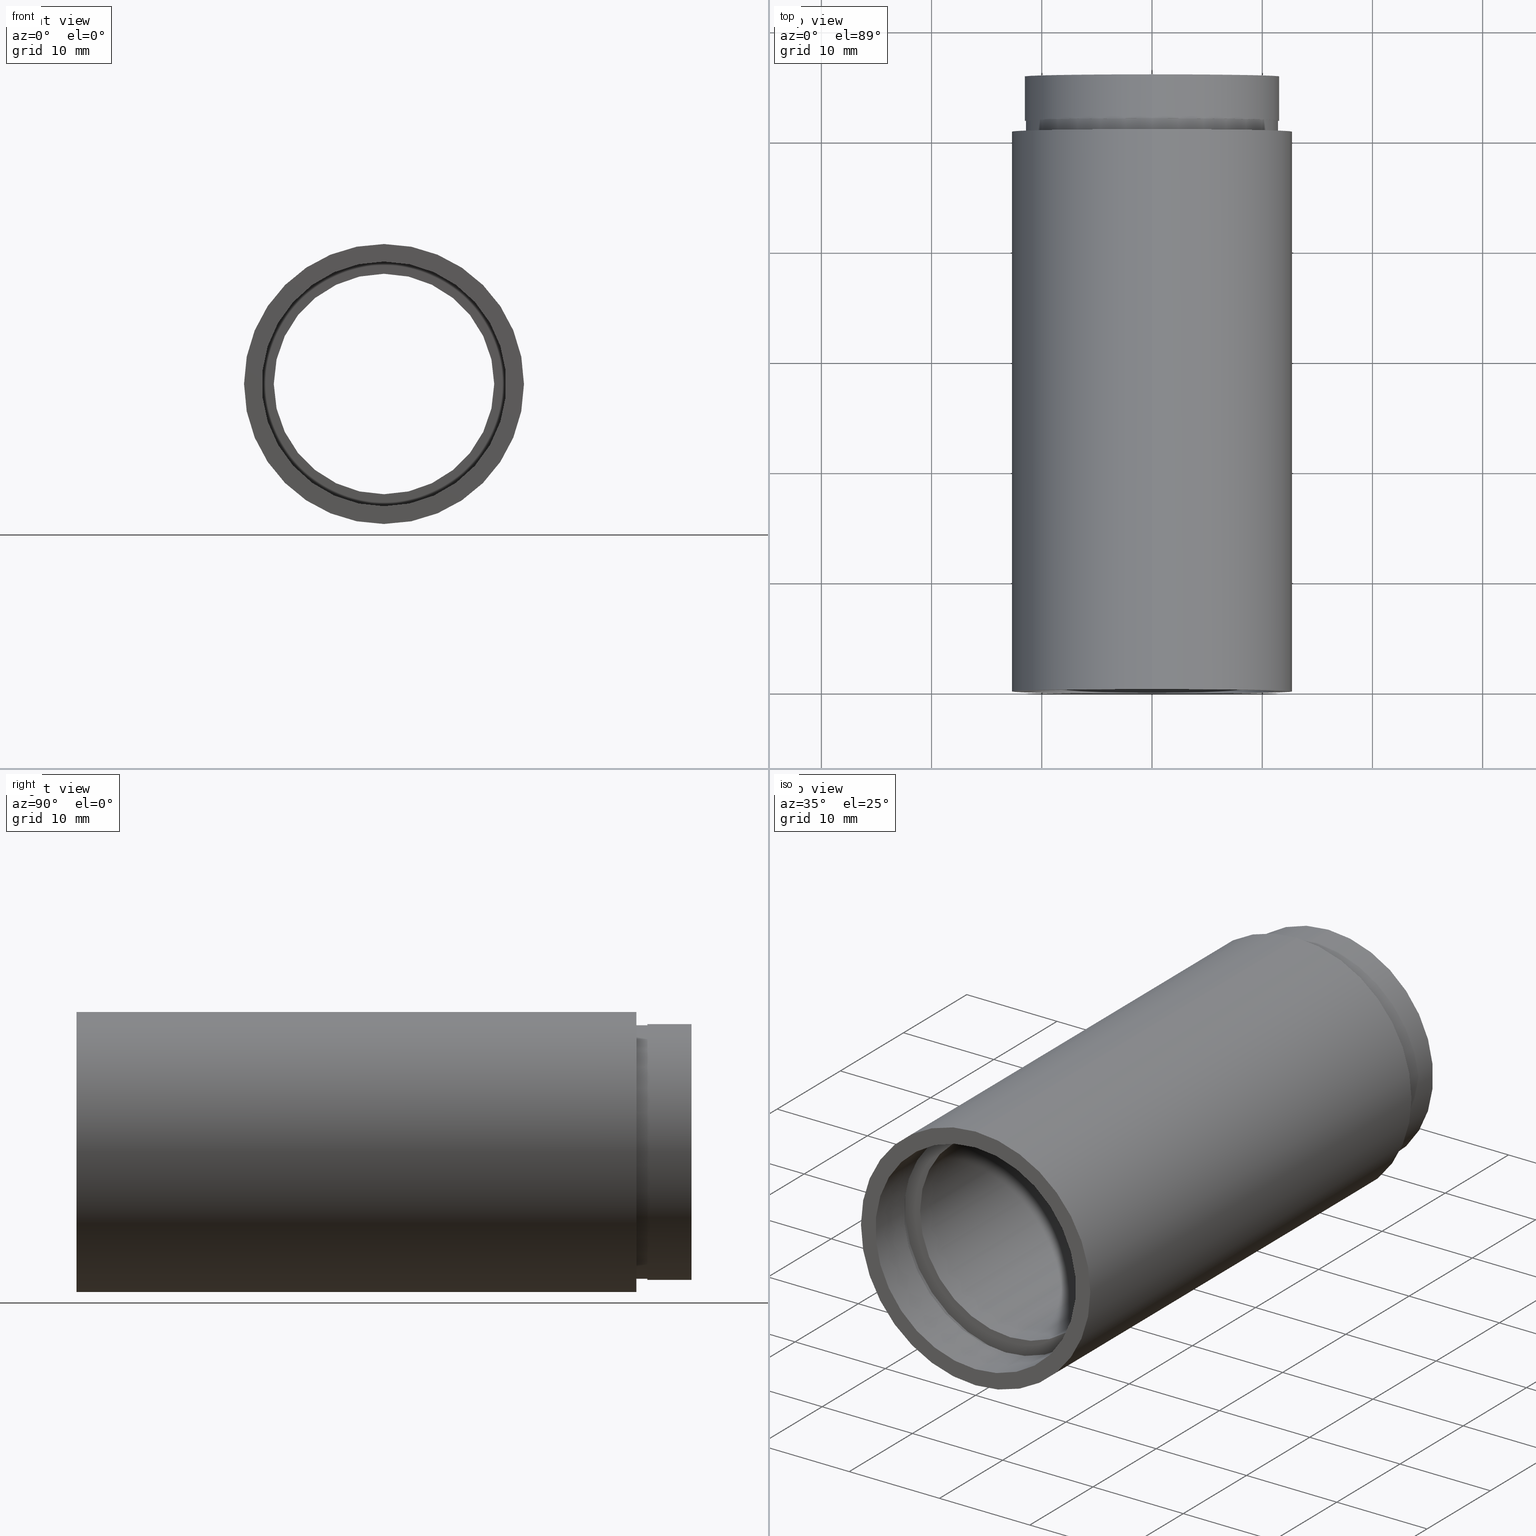
[diagram: canonical four-view strip — front | top / right | iso, engineering-drawing reading convention]
A machine part, canonical four-view strip (front | top / right | iso — engineering-drawing reading convention). The complete STEP part file that produces these views, byte-faithful:
ISO-10303-21;
HEADER;
FILE_DESCRIPTION (( 'STEP AP214' ),
    '1' );
FILE_NAME ('503056.STEP',
    '2019-09-09T01:47:25',
    ( '' ),
    ( '' ),
    'SwSTEP 2.0',
    'SolidWorks 2016',
    '' );
FILE_SCHEMA (( 'AUTOMOTIVE_DESIGN' ));
ENDSEC;

DATA;
#1 = AXIS2_PLACEMENT_3D ( 'NONE', #265, #24, #215 ) ;
#2 = ADVANCED_FACE ( 'NONE', ( #492 ), #305, .T. ) ;
#3 = AXIS2_PLACEMENT_3D ( 'NONE', #70, #458, #172 ) ;
#4 = ORIENTED_EDGE ( 'NONE', *, *, #54, .F. ) ;
#5 =( LENGTH_UNIT ( ) NAMED_UNIT ( * ) SI_UNIT ( .MILLI., .METRE. ) );
#6 = CYLINDRICAL_SURFACE ( 'NONE', #13, 11.50000000000001200 ) ;
#7 = ORIENTED_EDGE ( 'NONE', *, *, #381, .T. ) ;
#8 = DIRECTION ( 'NONE',  ( -0.0000000000000000000, 1.000000000000000000, -0.0000000000000000000 ) ) ;
#9 = CIRCLE ( 'NONE', #342, 11.50000000000001200 ) ;
#10 = EDGE_CURVE ( 'NONE', #387, #130, #144, .T. ) ;
#11 = PRESENTATION_STYLE_ASSIGNMENT (( #170 ) ) ;
#12 = APPLICATION_PROTOCOL_DEFINITION ( 'draft international standard', 'automotive_design', 1998, #438 ) ;
#13 = AXIS2_PLACEMENT_3D ( 'NONE', #87, #282, #422 ) ;
#14 = CARTESIAN_POINT ( 'NONE',  ( 0.0000000000000000000, 161.3761669434274500, 11.70000000000001900 ) ) ;
#15 = DIRECTION ( 'NONE',  ( -0.0000000000000000000, 1.000000000000000000, -0.0000000000000000000 ) ) ;
#16 = DIRECTION ( 'NONE',  ( -0.0000000000000000000, 1.000000000000000000, -0.0000000000000000000 ) ) ;
#17 = VERTEX_POINT ( 'NONE', #549 ) ;
#18 = DIRECTION ( 'NONE',  ( -0.0000000000000000000, 1.000000000000000000, -0.0000000000000000000 ) ) ;
#19 = ORIENTED_EDGE ( 'NONE', *, *, #384, .F. ) ;
#20 = PRESENTATION_STYLE_ASSIGNMENT (( #420 ) ) ;
#21 = CARTESIAN_POINT ( 'NONE',  ( 0.0000000000000000000, 51.79999999999998300, 0.0000000000000000000 ) ) ;
#22 = ORIENTED_EDGE ( 'NONE', *, *, #620, .T. ) ;
#23 = DIRECTION ( 'NONE',  ( -0.0000000000000000000, 1.000000000000000000, -0.0000000000000000000 ) ) ;
#24 = DIRECTION ( 'NONE',  ( -0.0000000000000000000, 1.000000000000000000, -0.0000000000000000000 ) ) ;
#25 = MECHANICAL_DESIGN_GEOMETRIC_PRESENTATION_REPRESENTATION (  '', ( #453 ), #572 ) ;
#26 = EDGE_CURVE ( 'NONE', #141, #299, #9, .T. ) ;
#27 =( LENGTH_UNIT ( ) NAMED_UNIT ( * ) SI_UNIT ( .MILLI., .METRE. ) );
#28 = DIRECTION ( 'NONE',  ( -0.0000000000000000000, 1.000000000000000000, -0.0000000000000000000 ) ) ;
#29 = AXIS2_PLACEMENT_3D ( 'NONE', #324, #32, #179 ) ;
#30 = CARTESIAN_POINT ( 'NONE',  ( 0.0000000000000000000, 4.499999999999976000, 0.0000000000000000000 ) ) ;
#31 = CARTESIAN_POINT ( 'NONE',  ( 1.408343819019457800E-015, 50.79999999999998300, -11.50000000000001200 ) ) ;
#32 = DIRECTION ( 'NONE',  ( -0.0000000000000000000, 1.000000000000000000, -0.0000000000000000000 ) ) ;
#33 = DIRECTION ( 'NONE',  ( -0.0000000000000000000, 1.000000000000000000, -0.0000000000000000000 ) ) ;
#34 = CARTESIAN_POINT ( 'NONE',  ( 0.0000000000000000000, 5.499999999999976900, 0.0000000000000000000 ) ) ;
#35 = DIRECTION ( 'NONE',  ( -0.0000000000000000000, 1.000000000000000000, -0.0000000000000000000 ) ) ;
#36 = DIRECTION ( 'NONE',  ( -0.0000000000000000000, 1.000000000000000000, -0.0000000000000000000 ) ) ;
#37 = CARTESIAN_POINT ( 'NONE',  ( 1.420590287010930900E-015, 55.79999999999999000, -11.60000000000001000 ) ) ;
#38 = DIRECTION ( 'NONE',  ( -0.0000000000000000000, 1.000000000000000000, -0.0000000000000000000 ) ) ;
#39 = PLANE ( 'NONE',  #321 ) ;
#40 = ORIENTED_EDGE ( 'NONE', *, *, #110, .T. ) ;
#41 = PRODUCT_DEFINITION_CONTEXT ( 'detailed design', #438, 'design' ) ;
#42 = CIRCLE ( 'NONE', #588, 11.70000000000001900 ) ;
#43 = ORIENTED_EDGE ( 'NONE', *, *, #441, .F. ) ;
#44 = STYLED_ITEM ( 'NONE', ( #11 ), #484 ) ;
#45 = EDGE_CURVE ( 'NONE', #522, #122, #320, .T. ) ;
#46 = UNCERTAINTY_MEASURE_WITH_UNIT (LENGTH_MEASURE( 1.000000000000000100E-005 ), #201, 'distance_accuracy_value', 'NONE');
#47 = AXIS2_PLACEMENT_3D ( 'NONE', #177, #28, #545 ) ;
#48 = STYLED_ITEM ( 'NONE', ( #20 ), #297 ) ;
#49 = ADVANCED_FACE ( 'NONE', ( #168 ), #347, .F. ) ;
#50 = ADVANCED_FACE ( 'NONE', ( #94 ), #488, .T. ) ;
#51 = VERTEX_POINT ( 'NONE', #121 ) ;
#52 = FACE_OUTER_BOUND ( 'NONE', #231, .T. ) ;
#53 = AXIS2_PLACEMENT_3D ( 'NONE', #609, #417, #462 ) ;
#54 = EDGE_CURVE ( 'NONE', #238, #351, #503, .T. ) ;
#55 = SURFACE_STYLE_FILL_AREA ( #553 ) ;
#56 = FACE_BOUND ( 'NONE', #613, .T. ) ;
#57 = DIRECTION ( 'NONE',  ( -0.0000000000000000000, 1.000000000000000000, -0.0000000000000000000 ) ) ;
#58 = STYLED_ITEM ( 'NONE', ( #200 ), #337 ) ;
#59 = ORIENTED_EDGE ( 'NONE', *, *, #384, .T. ) ;
#60 = FILL_AREA_STYLE_COLOUR ( '', #292 ) ;
#61 = CARTESIAN_POINT ( 'NONE',  ( 11.70000000000001900, 5.499999999999982200, 0.0000000000000000000 ) ) ;
#62 = CIRCLE ( 'NONE', #263, 11.50000000000001200 ) ;
#63 = AXIS2_PLACEMENT_3D ( 'NONE', #61, #359, #118 ) ;
#64 = ORIENTED_EDGE ( 'NONE', *, *, #45, .T. ) ;
#65 = ORIENTED_EDGE ( 'NONE', *, *, #505, .T. ) ;
#66 = COLOUR_RGB ( '',1.000000000000000000, 1.000000000000000000, 1.000000000000000000 ) ;
#67 = PLANE ( 'NONE',  #560 ) ;
#68 = DIRECTION ( 'NONE',  ( 0.0000000000000000000, 0.0000000000000000000, 1.000000000000000000 ) ) ;
#69 = AXIS2_PLACEMENT_3D ( 'NONE', #117, #15, #597 ) ;
#70 = CARTESIAN_POINT ( 'NONE',  ( 0.0000000000000000000, 161.3761669434274500, 0.0000000000000000000 ) ) ;
#71 = DIRECTION ( 'NONE',  ( -0.0000000000000000000, 1.000000000000000000, -0.0000000000000000000 ) ) ;
#72 = CARTESIAN_POINT ( 'NONE',  ( 0.0000000000000000000, 5.499999999999976900, 0.0000000000000000000 ) ) ;
#73 = DIRECTION ( 'NONE',  ( 0.0000000000000000000, 0.0000000000000000000, 1.000000000000000000 ) ) ;
#74 = ORIENTED_EDGE ( 'NONE', *, *, #570, .F. ) ;
#75 = EDGE_CURVE ( 'NONE', #555, #264, #142, .T. ) ;
#76 = DIRECTION ( 'NONE',  ( -0.0000000000000000000, 1.000000000000000000, -0.0000000000000000000 ) ) ;
#77 = VECTOR ( 'NONE', #286, 1000.000000000000000 ) ;
#78 = FILL_AREA_STYLE_COLOUR ( '', #302 ) ;
#79 = CARTESIAN_POINT ( 'NONE',  ( 1.432836755002405700E-015, 5.499999999999976900, -11.70000000000001900 ) ) ;
#80 = SURFACE_SIDE_STYLE ('',( #502 ) ) ;
#81 = ORIENTED_EDGE ( 'NONE', *, *, #110, .F. ) ;
#82 = PRESENTATION_LAYER_ASSIGNMENT (  '', '', ( #48 ) ) ;
#83 = CARTESIAN_POINT ( 'NONE',  ( 1.420590287010930900E-015, 161.3761669434274500, -11.60000000000001000 ) ) ;
#84 = CIRCLE ( 'NONE', #1, 11.10000000000001700 ) ;
#85 = ORIENTED_EDGE ( 'NONE', *, *, #291, .T. ) ;
#86 = DIRECTION ( 'NONE',  ( 0.0000000000000000000, 0.0000000000000000000, 1.000000000000000000 ) ) ;
#87 = CARTESIAN_POINT ( 'NONE',  ( 0.0000000000000000000, 161.3761669434274500, 0.0000000000000000000 ) ) ;
#88 = ORIENTED_EDGE ( 'NONE', *, *, #548, .T. ) ;
#89 = COLOUR_RGB ( '',1.000000000000000000, 1.000000000000000000, 1.000000000000000000 ) ;
#90 = DIRECTION ( 'NONE',  ( 0.0000000000000000000, 0.0000000000000000000, 1.000000000000000000 ) ) ;
#91 = LINE ( 'NONE', #455, #454 ) ;
#92 = EDGE_CURVE ( 'NONE', #555, #311, #243, .T. ) ;
#93 = PRODUCT ( '503056', '503056', '', ( #210 ) ) ;
#94 = FACE_OUTER_BOUND ( 'NONE', #151, .T. ) ;
#95 = MECHANICAL_DESIGN_GEOMETRIC_PRESENTATION_REPRESENTATION (  '', ( #48 ), #459 ) ;
#96 = PRESENTATION_STYLE_ASSIGNMENT (( #383 ) ) ;
#97 = DIRECTION ( 'NONE',  ( 0.0000000000000000000, 0.0000000000000000000, 1.000000000000000000 ) ) ;
#98 = CIRCLE ( 'NONE', #437, 10.00000000000002000 ) ;
#99 = ORIENTED_EDGE ( 'NONE', *, *, #291, .F. ) ;
#100 = AXIS2_PLACEMENT_3D ( 'NONE', #161, #301, #252 ) ;
#101 = VERTEX_POINT ( 'NONE', #322 ) ;
#102 = ADVANCED_FACE ( 'NONE', ( #606, #379 ), #421, .F. ) ;
#103 =( LENGTH_UNIT ( ) NAMED_UNIT ( * ) SI_UNIT ( .MILLI., .METRE. ) );
#104 = VECTOR ( 'NONE', #445, 1000.000000000000000 ) ;
#105 = MECHANICAL_DESIGN_GEOMETRIC_PRESENTATION_REPRESENTATION (  '', ( #44 ), #300 ) ;
#106 = SURFACE_STYLE_USAGE ( .BOTH. , #439 ) ;
#107 = EDGE_LOOP ( 'NONE', ( #574, #7, #229, #596 ) ) ;
#108 = LINE ( 'NONE', #223, #478 ) ;
#109 = APPLICATION_PROTOCOL_DEFINITION ( 'draft international standard', 'automotive_design', 1998, #349 ) ;
#110 = EDGE_CURVE ( 'NONE', #264, #51, #336, .T. ) ;
#111 = ORIENTED_EDGE ( 'NONE', *, *, #10, .F. ) ;
#112 = UNCERTAINTY_MEASURE_WITH_UNIT (LENGTH_MEASURE( 1.000000000000000100E-005 ), #137, 'distance_accuracy_value', 'NONE');
#113 = LINE ( 'NONE', #546, #624 ) ;
#114 = ORIENTED_EDGE ( 'NONE', *, *, #178, .F. ) ;
#115 =( NAMED_UNIT ( * ) SI_UNIT ( $, .STERADIAN. ) SOLID_ANGLE_UNIT ( ) );
#116 =( GEOMETRIC_REPRESENTATION_CONTEXT ( 3 ) GLOBAL_UNCERTAINTY_ASSIGNED_CONTEXT ( ( #112 ) ) GLOBAL_UNIT_ASSIGNED_CONTEXT ( ( #137, #128, #428 ) ) REPRESENTATION_CONTEXT ( 'NONE', 'WORKASPACE' ) );
#117 = CARTESIAN_POINT ( 'NONE',  ( 0.0000000000000000000, 161.3761669434274500, 0.0000000000000000000 ) ) ;
#118 = DIRECTION ( 'NONE',  ( 0.0000000000000000000, 0.0000000000000000000, 1.000000000000000000 ) ) ;
#119 = LINE ( 'NONE', #392, #104 ) ;
#120 = CARTESIAN_POINT ( 'NONE',  ( 1.432836755002405700E-015, 4.499999999999976000, -11.70000000000001900 ) ) ;
#121 = CARTESIAN_POINT ( 'NONE',  ( 0.0000000000000000000, 55.79999999999999000, 11.60000000000001000 ) ) ;
#122 = VERTEX_POINT ( 'NONE', #174 ) ;
#123 =( NAMED_UNIT ( * ) PLANE_ANGLE_UNIT ( ) SI_UNIT ( $, .RADIAN. ) );
#124 = LINE ( 'NONE', #425, #267 ) ;
#125 = DIRECTION ( 'NONE',  ( 0.0000000000000000000, 0.0000000000000000000, 1.000000000000000000 ) ) ;
#126 = EDGE_CURVE ( 'NONE', #238, #365, #108, .T. ) ;
#127 = DIRECTION ( 'NONE',  ( 0.0000000000000000000, 0.0000000000000000000, 1.000000000000000000 ) ) ;
#128 =( NAMED_UNIT ( * ) PLANE_ANGLE_UNIT ( ) SI_UNIT ( $, .RADIAN. ) );
#129 =( GEOMETRIC_REPRESENTATION_CONTEXT ( 3 ) GLOBAL_UNCERTAINTY_ASSIGNED_CONTEXT ( ( #513 ) ) GLOBAL_UNIT_ASSIGNED_CONTEXT ( ( #374, #227, #514 ) ) REPRESENTATION_CONTEXT ( 'NONE', 'WORKASPACE' ) );
#130 = VERTEX_POINT ( 'NONE', #460 ) ;
#131 = DIRECTION ( 'NONE',  ( 0.0000000000000000000, 0.0000000000000000000, 1.000000000000000000 ) ) ;
#132 = CARTESIAN_POINT ( 'NONE',  ( 0.0000000000000000000, 51.79999999999998300, 11.50000000000001200 ) ) ;
#133 = CIRCLE ( 'NONE', #494, 11.10000000000001700 ) ;
#134 = CIRCLE ( 'NONE', #306, 11.70000000000001900 ) ;
#135 = FILL_AREA_STYLE_COLOUR ( '', #521 ) ;
#136 = CARTESIAN_POINT ( 'NONE',  ( 0.0000000000000000000, -2.775557561562891400E-014, 0.0000000000000000000 ) ) ;
#137 =( LENGTH_UNIT ( ) NAMED_UNIT ( * ) SI_UNIT ( .MILLI., .METRE. ) );
#138 = CARTESIAN_POINT ( 'NONE',  ( 11.60000000000001000, 55.79999999999999000, 0.0000000000000000000 ) ) ;
#139 = DIRECTION ( 'NONE',  ( -0.0000000000000000000, 1.000000000000000000, -0.0000000000000000000 ) ) ;
#140 = CARTESIAN_POINT ( 'NONE',  ( 0.0000000000000000000, 55.79999999999999000, 0.0000000000000000000 ) ) ;
#141 = VERTEX_POINT ( 'NONE', #611 ) ;
#142 = LINE ( 'NONE', #83, #407 ) ;
#143 = EDGE_LOOP ( 'NONE', ( #590, #470 ) ) ;
#144 = CIRCLE ( 'NONE', #481, 12.70000000000002100 ) ;
#145 = EDGE_CURVE ( 'NONE', #603, #317, #444, .T. ) ;
#146 = CYLINDRICAL_SURFACE ( 'NONE', #196, 11.10000000000001700 ) ;
#147 = CARTESIAN_POINT ( 'NONE',  ( 0.0000000000000000000, 161.3761669434274500, 0.0000000000000000000 ) ) ;
#148 = PRESENTATION_LAYER_ASSIGNMENT (  '', '', ( #58 ) ) ;
#149 = DIRECTION ( 'NONE',  ( -0.0000000000000000000, 1.000000000000000000, -0.0000000000000000000 ) ) ;
#150 = ADVANCED_FACE ( 'NONE', ( #268 ), #532, .T. ) ;
#151 = EDGE_LOOP ( 'NONE', ( #357, #529, #186, #266 ) ) ;
#152 = ORIENTED_EDGE ( 'NONE', *, *, #477, .T. ) ;
#153 = CIRCLE ( 'NONE', #599, 11.60000000000001000 ) ;
#154 = VERTEX_POINT ( 'NONE', #327 ) ;
#155 = EDGE_CURVE ( 'NONE', #130, #387, #367, .T. ) ;
#156 = FACE_OUTER_BOUND ( 'NONE', #353, .T. ) ;
#157 = SURFACE_STYLE_FILL_AREA ( #354 ) ;
#158 = AXIS2_PLACEMENT_3D ( 'NONE', #601, #23, #273 ) ;
#159 = UNCERTAINTY_MEASURE_WITH_UNIT (LENGTH_MEASURE( 1.000000000000000100E-005 ), #165, 'distance_accuracy_value', 'NONE');
#160 = SURFACE_SIDE_STYLE ('',( #251 ) ) ;
#161 = CARTESIAN_POINT ( 'NONE',  ( 0.0000000000000000000, 5.499999999999976900, 0.0000000000000000000 ) ) ;
#162 = DIRECTION ( 'NONE',  ( -0.0000000000000000000, 1.000000000000000000, -0.0000000000000000000 ) ) ;
#163 = AXIS2_PLACEMENT_3D ( 'NONE', #593, #608, #371 ) ;
#164 =( NAMED_UNIT ( * ) PLANE_ANGLE_UNIT ( ) SI_UNIT ( $, .RADIAN. ) );
#165 =( LENGTH_UNIT ( ) NAMED_UNIT ( * ) SI_UNIT ( .MILLI., .METRE. ) );
#166 = EDGE_LOOP ( 'NONE', ( #85, #452, #487, #476 ) ) ;
#167 = VECTOR ( 'NONE', #187, 1000.000000000000000 ) ;
#168 = FACE_OUTER_BOUND ( 'NONE', #290, .T. ) ;
#169 = EDGE_LOOP ( 'NONE', ( #310, #464 ) ) ;
#170 = SURFACE_STYLE_USAGE ( .BOTH. , #309 ) ;
#171 = PRESENTATION_LAYER_ASSIGNMENT (  '', '', ( #44 ) ) ;
#172 = DIRECTION ( 'NONE',  ( 0.0000000000000000000, 0.0000000000000000000, 1.000000000000000000 ) ) ;
#173 = CARTESIAN_POINT ( 'NONE',  ( 12.70000000000001900, 50.79999999999998300, 0.0000000000000000000 ) ) ;
#174 = CARTESIAN_POINT ( 'NONE',  ( 1.555301434917140800E-015, 50.79999999999998300, -12.70000000000001900 ) ) ;
#175 = CIRCLE ( 'NONE', #163, 11.10000000000001700 ) ;
#176 = DIRECTION ( 'NONE',  ( -0.0000000000000000000, 1.000000000000000000, -0.0000000000000000000 ) ) ;
#177 = CARTESIAN_POINT ( 'NONE',  ( 0.0000000000000000000, 161.3761669434274500, 0.0000000000000000000 ) ) ;
#178 = EDGE_CURVE ( 'NONE', #154, #408, #42, .T. ) ;
#179 = DIRECTION ( 'NONE',  ( 0.0000000000000000000, 0.0000000000000000000, 1.000000000000000000 ) ) ;
#180 = FILL_AREA_STYLE ('',( #463 ) ) ;
#181 = DIRECTION ( 'NONE',  ( -0.0000000000000000000, 1.000000000000000000, -0.0000000000000000000 ) ) ;
#182 = FILL_AREA_STYLE ('',( #562 ) ) ;
#183 = CARTESIAN_POINT ( 'NONE',  ( 0.0000000000000000000, 161.3761669434274500, 0.0000000000000000000 ) ) ;
#184 = MECHANICAL_DESIGN_GEOMETRIC_PRESENTATION_REPRESENTATION (  '', ( #473 ), #567 ) ;
#185 = ORIENTED_EDGE ( 'NONE', *, *, #348, .F. ) ;
#186 = ORIENTED_EDGE ( 'NONE', *, *, #45, .F. ) ;
#187 = DIRECTION ( 'NONE',  ( -0.0000000000000000000, 1.000000000000000000, -0.0000000000000000000 ) ) ;
#188 = VECTOR ( 'NONE', #176, 1000.000000000000000 ) ;
#189 = EDGE_CURVE ( 'NONE', #338, #603, #207, .T. ) ;
#190 = CARTESIAN_POINT ( 'NONE',  ( 0.0000000000000000000, 161.3761669434274500, 0.0000000000000000000 ) ) ;
#191 = ORIENTED_EDGE ( 'NONE', *, *, #75, .F. ) ;
#192 = AXIS2_PLACEMENT_3D ( 'NONE', #190, #247, #97 ) ;
#193 = EDGE_LOOP ( 'NONE', ( #99, #496 ) ) ;
#194 = ORIENTED_EDGE ( 'NONE', *, *, #586, .F. ) ;
#195 = SURFACE_SIDE_STYLE ('',( #372 ) ) ;
#196 = AXIS2_PLACEMENT_3D ( 'NONE', #534, #8, #587 ) ;
#197 = ORIENTED_EDGE ( 'NONE', *, *, #315, .T. ) ;
#198 = ORIENTED_EDGE ( 'NONE', *, *, #126, .F. ) ;
#199 = ADVANCED_FACE ( 'NONE', ( #524, #272 ), #39, .F. ) ;
#200 = PRESENTATION_STYLE_ASSIGNMENT (( #323 ) ) ;
#201 =( LENGTH_UNIT ( ) NAMED_UNIT ( * ) SI_UNIT ( .MILLI., .METRE. ) );
#202 = AXIS2_PLACEMENT_3D ( 'NONE', #147, #341, #604 ) ;
#203 = CIRCLE ( 'NONE', #100, 10.00000000000002000 ) ;
#204 = DIRECTION ( 'NONE',  ( -0.0000000000000000000, 1.000000000000000000, -0.0000000000000000000 ) ) ;
#205 = EDGE_LOOP ( 'NONE', ( #380, #214 ) ) ;
#206 = CARTESIAN_POINT ( 'NONE',  ( 0.0000000000000000000, 0.0000000000000000000, 0.0000000000000000000 ) ) ;
#207 = LINE ( 'NONE', #517, #77 ) ;
#208 = EDGE_CURVE ( 'NONE', #387, #522, #124, .T. ) ;
#209 = ORIENTED_EDGE ( 'NONE', *, *, #348, .T. ) ;
#210 = PRODUCT_CONTEXT ( 'NONE', #349, 'mechanical' ) ;
#211 = FACE_OUTER_BOUND ( 'NONE', #107, .T. ) ;
#212 = ORIENTED_EDGE ( 'NONE', *, *, #145, .F. ) ;
#213 = AXIS2_PLACEMENT_3D ( 'NONE', #72, #412, #605 ) ;
#214 = ORIENTED_EDGE ( 'NONE', *, *, #26, .T. ) ;
#215 = DIRECTION ( 'NONE',  ( 0.0000000000000000000, 0.0000000000000000000, 1.000000000000000000 ) ) ;
#216 = DIRECTION ( 'NONE',  ( 0.0000000000000000000, -0.0000000000000000000, -1.000000000000000000 ) ) ;
#217 = DIRECTION ( 'NONE',  ( -0.0000000000000000000, 1.000000000000000000, -0.0000000000000000000 ) ) ;
#218 = LINE ( 'NONE', #368, #188 ) ;
#219 = DIRECTION ( 'NONE',  ( 0.0000000000000000000, 0.0000000000000000000, 1.000000000000000000 ) ) ;
#220 = CARTESIAN_POINT ( 'NONE',  ( 1.224646799147355400E-015, 55.79999999999999000, -10.00000000000002000 ) ) ;
#221 = DIRECTION ( 'NONE',  ( -0.0000000000000000000, 1.000000000000000000, -0.0000000000000000000 ) ) ;
#222 = EDGE_CURVE ( 'NONE', #365, #435, #531, .T. ) ;
#223 = CARTESIAN_POINT ( 'NONE',  ( 1.224646799147355400E-015, 161.3761669434274500, -10.00000000000002000 ) ) ;
#224 = DIRECTION ( 'NONE',  ( 0.0000000000000000000, 0.0000000000000000000, 1.000000000000000000 ) ) ;
#225 = CARTESIAN_POINT ( 'NONE',  ( 0.0000000000000000000, 51.79999999999998300, 0.0000000000000000000 ) ) ;
#226 = AXIS2_PLACEMENT_3D ( 'NONE', #313, #361, #308 ) ;
#227 =( NAMED_UNIT ( * ) PLANE_ANGLE_UNIT ( ) SI_UNIT ( $, .RADIAN. ) );
#228 = DIRECTION ( 'NONE',  ( -0.0000000000000000000, 1.000000000000000000, -0.0000000000000000000 ) ) ;
#229 = ORIENTED_EDGE ( 'NONE', *, *, #536, .T. ) ;
#230 = UNCERTAINTY_MEASURE_WITH_UNIT (LENGTH_MEASURE( 1.000000000000000100E-005 ), #525, 'distance_accuracy_value', 'NONE');
#231 = EDGE_LOOP ( 'NONE', ( #197, #235, #426, #285 ) ) ;
#232 = CARTESIAN_POINT ( 'NONE',  ( 0.0000000000000000000, 161.3761669434274500, 0.0000000000000000000 ) ) ;
#233 = DIRECTION ( 'NONE',  ( 0.0000000000000000000, 0.0000000000000000000, 1.000000000000000000 ) ) ;
#234 = DIRECTION ( 'NONE',  ( 0.0000000000000000000, 0.0000000000000000000, 1.000000000000000000 ) ) ;
#235 = ORIENTED_EDGE ( 'NONE', *, *, #621, .T. ) ;
#236 = AXIS2_PLACEMENT_3D ( 'NONE', #410, #18, #125 ) ;
#237 = DIRECTION ( 'NONE',  ( 0.0000000000000000000, 0.0000000000000000000, 1.000000000000000000 ) ) ;
#238 = VERTEX_POINT ( 'NONE', #239 ) ;
#239 = CARTESIAN_POINT ( 'NONE',  ( 1.224646799147355400E-015, 5.499999999999976900, -10.00000000000002000 ) ) ;
#240 = VECTOR ( 'NONE', #204, 1000.000000000000000 ) ;
#241 = MECHANICAL_DESIGN_GEOMETRIC_PRESENTATION_REPRESENTATION (  '', ( #58 ), #129 ) ;
#242 = ORIENTED_EDGE ( 'NONE', *, *, #189, .F. ) ;
#243 = CIRCLE ( 'NONE', #29, 11.60000000000001000 ) ;
#244 = EDGE_CURVE ( 'NONE', #130, #122, #471, .T. ) ;
#245 = FILL_AREA_STYLE ('',( #575 ) ) ;
#246 = SURFACE_STYLE_FILL_AREA ( #589 ) ;
#247 = DIRECTION ( 'NONE',  ( -0.0000000000000000000, 1.000000000000000000, -0.0000000000000000000 ) ) ;
#248 = AXIS2_PLACEMENT_3D ( 'NONE', #318, #217, #224 ) ;
#249 = ADVANCED_FACE ( 'NONE', ( #312, #520 ), #465, .F. ) ;
#250 = ORIENTED_EDGE ( 'NONE', *, *, #441, .T. ) ;
#251 = SURFACE_STYLE_FILL_AREA ( #442 ) ;
#252 = DIRECTION ( 'NONE',  ( 0.0000000000000000000, 0.0000000000000000000, 1.000000000000000000 ) ) ;
#253 = EDGE_LOOP ( 'NONE', ( #360, #504 ) ) ;
#254 = PRESENTATION_STYLE_ASSIGNMENT (( #404 ) ) ;
#255 =( NAMED_UNIT ( * ) PLANE_ANGLE_UNIT ( ) SI_UNIT ( $, .RADIAN. ) );
#256 = AXIS2_PLACEMENT_3D ( 'NONE', #206, #538, #261 ) ;
#257 = EDGE_CURVE ( 'NONE', #351, #435, #436, .T. ) ;
#258 = CARTESIAN_POINT ( 'NONE',  ( 1.359357947053564100E-015, 4.499999999999976000, -11.10000000000001700 ) ) ;
#259 = ORIENTED_EDGE ( 'NONE', *, *, #381, .F. ) ;
#260 = AXIS2_PLACEMENT_3D ( 'NONE', #183, #283, #233 ) ;
#261 = DIRECTION ( 'NONE',  ( 1.000000000000000000, 0.0000000000000000000, 0.0000000000000000000 ) ) ;
#262 = CARTESIAN_POINT ( 'NONE',  ( 0.0000000000000000000, 50.79999999999998300, 12.70000000000001900 ) ) ;
#263 = AXIS2_PLACEMENT_3D ( 'NONE', #225, #554, #275 ) ;
#264 = VERTEX_POINT ( 'NONE', #37 ) ;
#265 = CARTESIAN_POINT ( 'NONE',  ( 0.0000000000000000000, -2.775557561562891400E-014, 0.0000000000000000000 ) ) ;
#266 = ORIENTED_EDGE ( 'NONE', *, *, #208, .F. ) ;
#267 = VECTOR ( 'NONE', #288, 1000.000000000000000 ) ;
#268 = FACE_OUTER_BOUND ( 'NONE', #434, .T. ) ;
#269 = ORIENTED_EDGE ( 'NONE', *, *, #208, .T. ) ;
#270 = MECHANICAL_DESIGN_GEOMETRIC_PRESENTATION_REPRESENTATION (  '', ( #551 ), #116 ) ;
#271 = DIRECTION ( 'NONE',  ( -0.0000000000000000000, 1.000000000000000000, -0.0000000000000000000 ) ) ;
#272 = FACE_OUTER_BOUND ( 'NONE', #565, .T. ) ;
#273 = DIRECTION ( 'NONE',  ( 0.0000000000000000000, 0.0000000000000000000, 1.000000000000000000 ) ) ;
#274 = UNCERTAINTY_MEASURE_WITH_UNIT (LENGTH_MEASURE( 1.000000000000000100E-005 ), #27, 'distance_accuracy_value', 'NONE');
#275 = DIRECTION ( 'NONE',  ( 0.0000000000000000000, 0.0000000000000000000, 1.000000000000000000 ) ) ;
#276 = DIRECTION ( 'NONE',  ( 0.0000000000000000000, 0.0000000000000000000, 1.000000000000000000 ) ) ;
#277 =( LENGTH_UNIT ( ) NAMED_UNIT ( * ) SI_UNIT ( .MILLI., .METRE. ) );
#278 =( GEOMETRIC_REPRESENTATION_CONTEXT ( 3 ) GLOBAL_UNCERTAINTY_ASSIGNED_CONTEXT ( ( #46 ) ) GLOBAL_UNIT_ASSIGNED_CONTEXT ( ( #201, #255, #390 ) ) REPRESENTATION_CONTEXT ( 'NONE', 'WORKASPACE' ) );
#279 = CARTESIAN_POINT ( 'NONE',  ( 11.50000000000001200, 51.79999999999998300, 0.0000000000000000000 ) ) ;
#280 = CARTESIAN_POINT ( 'NONE',  ( 0.0000000000000000000, 4.499999999999976000, 11.10000000000001700 ) ) ;
#281 = AXIS2_PLACEMENT_3D ( 'NONE', #472, #563, #284 ) ;
#282 = DIRECTION ( 'NONE',  ( -0.0000000000000000000, 1.000000000000000000, -0.0000000000000000000 ) ) ;
#283 = DIRECTION ( 'NONE',  ( -0.0000000000000000000, 1.000000000000000000, -0.0000000000000000000 ) ) ;
#284 = DIRECTION ( 'NONE',  ( 0.0000000000000000000, 0.0000000000000000000, 1.000000000000000000 ) ) ;
#285 = ORIENTED_EDGE ( 'NONE', *, *, #607, .F. ) ;
#286 = DIRECTION ( 'NONE',  ( -0.0000000000000000000, 1.000000000000000000, -0.0000000000000000000 ) ) ;
#287 = ORIENTED_EDGE ( 'NONE', *, *, #607, .T. ) ;
#288 = DIRECTION ( 'NONE',  ( -0.0000000000000000000, 1.000000000000000000, -0.0000000000000000000 ) ) ;
#289 = SURFACE_STYLE_FILL_AREA ( #506 ) ;
#290 = EDGE_LOOP ( 'NONE', ( #259, #114, #22, #209 ) ) ;
#291 = EDGE_CURVE ( 'NONE', #311, #555, #153, .T. ) ;
#292 = COLOUR_RGB ( '',1.000000000000000000, 1.000000000000000000, 1.000000000000000000 ) ;
#293 = COLOUR_RGB ( '',1.000000000000000000, 1.000000000000000000, 1.000000000000000000 ) ;
#294 = AXIS2_PLACEMENT_3D ( 'NONE', #34, #559, #131 ) ;
#295 = ADVANCED_FACE ( 'NONE', ( #52 ), #6, .T. ) ;
#296 = AXIS2_PLACEMENT_3D ( 'NONE', #602, #495, #216 ) ;
#297 = ADVANCED_FACE ( 'NONE', ( #405 ), #427, .F. ) ;
#298 = EDGE_LOOP ( 'NONE', ( #242, #468, #250, #429 ) ) ;
#299 = VERTEX_POINT ( 'NONE', #132 ) ;
#300 =( GEOMETRIC_REPRESENTATION_CONTEXT ( 3 ) GLOBAL_UNCERTAINTY_ASSIGNED_CONTEXT ( ( #159 ) ) GLOBAL_UNIT_ASSIGNED_CONTEXT ( ( #165, #164, #497 ) ) REPRESENTATION_CONTEXT ( 'NONE', 'WORKASPACE' ) );
#301 = DIRECTION ( 'NONE',  ( -0.0000000000000000000, 1.000000000000000000, -0.0000000000000000000 ) ) ;
#302 = COLOUR_RGB ( '',1.000000000000000000, 1.000000000000000000, 1.000000000000000000 ) ;
#303 = CIRCLE ( 'NONE', #523, 11.50000000000001200 ) ;
#304 = SURFACE_STYLE_USAGE ( .BOTH. , #160 ) ;
#305 = CYLINDRICAL_SURFACE ( 'NONE', #192, 11.60000000000001000 ) ;
#306 = AXIS2_PLACEMENT_3D ( 'NONE', #595, #16, #68 ) ;
#307 = AXIS2_PLACEMENT_3D ( 'NONE', #279, #415, #509 ) ;
#308 = DIRECTION ( 'NONE',  ( 0.0000000000000000000, 0.0000000000000000000, 1.000000000000000000 ) ) ;
#309 = SURFACE_SIDE_STYLE ('',( #157 ) ) ;
#310 = ORIENTED_EDGE ( 'NONE', *, *, #586, .T. ) ;
#311 = VERTEX_POINT ( 'NONE', #558 ) ;
#312 = FACE_OUTER_BOUND ( 'NONE', #326, .T. ) ;
#313 = CARTESIAN_POINT ( 'NONE',  ( 0.0000000000000000000, 50.79999999999998300, 0.0000000000000000000 ) ) ;
#314 = FACE_BOUND ( 'NONE', #169, .T. ) ;
#315 = EDGE_CURVE ( 'NONE', #17, #577, #345, .T. ) ;
#316 = SURFACE_SIDE_STYLE ('',( #289 ) ) ;
#317 = VERTEX_POINT ( 'NONE', #280 ) ;
#318 = CARTESIAN_POINT ( 'NONE',  ( 0.0000000000000000000, 50.79999999999998300, 0.0000000000000000000 ) ) ;
#319 = CARTESIAN_POINT ( 'NONE',  ( 0.0000000000000000000, -2.775557561562891400E-014, 11.10000000000001700 ) ) ;
#320 = CIRCLE ( 'NONE', #226, 12.70000000000001900 ) ;
#321 = AXIS2_PLACEMENT_3D ( 'NONE', #138, #334, #615 ) ;
#322 = CARTESIAN_POINT ( 'NONE',  ( 0.0000000000000000000, 5.499999999999976900, 11.70000000000001900 ) ) ;
#323 = SURFACE_STYLE_USAGE ( .BOTH. , #511 ) ;
#324 = CARTESIAN_POINT ( 'NONE',  ( 0.0000000000000000000, 51.79999999999998300, 0.0000000000000000000 ) ) ;
#325 = DIRECTION ( 'NONE',  ( 0.0000000000000000000, 0.0000000000000000000, 1.000000000000000000 ) ) ;
#326 = EDGE_LOOP ( 'NONE', ( #111, #479 ) ) ;
#327 = CARTESIAN_POINT ( 'NONE',  ( 0.0000000000000000000, 4.499999999999976000, 11.70000000000001900 ) ) ;
#328 =( NAMED_UNIT ( * ) SI_UNIT ( $, .STERADIAN. ) SOLID_ANGLE_UNIT ( ) );
#329 = PRESENTATION_LAYER_ASSIGNMENT (  '', '', ( #547 ) ) ;
#330 = CARTESIAN_POINT ( 'NONE',  ( 0.0000000000000000000, -2.775557561562891400E-014, 0.0000000000000000000 ) ) ;
#331 = EDGE_LOOP ( 'NONE', ( #65, #617 ) ) ;
#332 = EDGE_LOOP ( 'NONE', ( #450, #544 ) ) ;
#333 = SURFACE_STYLE_FILL_AREA ( #180 ) ;
#334 = DIRECTION ( 'NONE',  ( 0.0000000000000000000, -1.000000000000000000, 0.0000000000000000000 ) ) ;
#335 = LINE ( 'NONE', #14, #618 ) ;
#336 = CIRCLE ( 'NONE', #366, 11.60000000000001000 ) ;
#337 = MANIFOLD_SOLID_BREP ( '��ת1', #355 ) ;
#338 = VERTEX_POINT ( 'NONE', #461 ) ;
#339 = FACE_OUTER_BOUND ( 'NONE', #143, .T. ) ;
#340 = SHAPE_DEFINITION_REPRESENTATION ( #582, #557 ) ;
#341 = DIRECTION ( 'NONE',  ( -0.0000000000000000000, 1.000000000000000000, -0.0000000000000000000 ) ) ;
#342 = AXIS2_PLACEMENT_3D ( 'NONE', #21, #423, #234 ) ;
#343 = ADVANCED_FACE ( 'NONE', ( #156 ), #413, .F. ) ;
#344 = ORIENTED_EDGE ( 'NONE', *, *, #92, .T. ) ;
#345 = CIRCLE ( 'NONE', #528, 11.50000000000001200 ) ;
#346 = CARTESIAN_POINT ( 'NONE',  ( 0.0000000000000000000, 161.3761669434274500, 11.50000000000001200 ) ) ;
#347 = CYLINDRICAL_SURFACE ( 'NONE', #202, 11.70000000000001900 ) ;
#348 = EDGE_CURVE ( 'NONE', #101, #561, #508, .T. ) ;
#349 = APPLICATION_CONTEXT ( 'automotive_design' ) ;
#350 = PRESENTATION_LAYER_ASSIGNMENT (  '', '', ( #469 ) ) ;
#351 = VERTEX_POINT ( 'NONE', #499 ) ;
#352 = COLOUR_RGB ( '',1.000000000000000000, 1.000000000000000000, 1.000000000000000000 ) ;
#353 = EDGE_LOOP ( 'NONE', ( #4, #388, #591, #402 ) ) ;
#354 = FILL_AREA_STYLE ('',( #364 ) ) ;
#355 = CLOSED_SHELL ( 'NONE', ( #297, #578, #343, #2, #295, #50, #249, #433, #527, #385, #102, #150, #199, #484, #526, #49, #485, #583 ) ) ;
#356 = DIRECTION ( 'NONE',  ( -0.0000000000000000000, 1.000000000000000000, -0.0000000000000000000 ) ) ;
#357 = ORIENTED_EDGE ( 'NONE', *, *, #10, .T. ) ;
#358 = PRODUCT_DEFINITION ( 'δ֪', '', #443, #41 ) ;
#359 = DIRECTION ( 'NONE',  ( -0.0000000000000000000, 1.000000000000000000, 0.0000000000000000000 ) ) ;
#360 = ORIENTED_EDGE ( 'NONE', *, *, #477, .F. ) ;
#361 = DIRECTION ( 'NONE',  ( -0.0000000000000000000, 1.000000000000000000, -0.0000000000000000000 ) ) ;
#362 = LINE ( 'NONE', #346, #240 ) ;
#363 = CARTESIAN_POINT ( 'NONE',  ( 0.0000000000000000000, -2.775557561562891400E-014, 12.70000000000002100 ) ) ;
#364 = FILL_AREA_STYLE_COLOUR ( '', #352 ) ;
#365 = VERTEX_POINT ( 'NONE', #220 ) ;
#366 = AXIS2_PLACEMENT_3D ( 'NONE', #419, #181, #127 ) ;
#367 = CIRCLE ( 'NONE', #614, 12.70000000000002100 ) ;
#368 = CARTESIAN_POINT ( 'NONE',  ( 1.432836755002405700E-015, 161.3761669434274500, -11.70000000000001900 ) ) ;
#369 = CARTESIAN_POINT ( 'NONE',  ( 1.420590287010930900E-015, 51.79999999999998300, -11.60000000000001000 ) ) ;
#370 = DIRECTION ( 'NONE',  ( -0.0000000000000000000, 1.000000000000000000, -0.0000000000000000000 ) ) ;
#371 = DIRECTION ( 'NONE',  ( 0.0000000000000000000, 0.0000000000000000000, 1.000000000000000000 ) ) ;
#372 = SURFACE_STYLE_FILL_AREA ( #245 ) ;
#373 = FACE_OUTER_BOUND ( 'NONE', #298, .T. ) ;
#374 =( LENGTH_UNIT ( ) NAMED_UNIT ( * ) SI_UNIT ( .MILLI., .METRE. ) );
#375 = DIRECTION ( 'NONE',  ( 0.0000000000000000000, 0.0000000000000000000, 1.000000000000000000 ) ) ;
#376 = DIRECTION ( 'NONE',  ( -0.0000000000000000000, 1.000000000000000000, 0.0000000000000000000 ) ) ;
#377 = CARTESIAN_POINT ( 'NONE',  ( 1.555301434917141000E-015, 161.3761669434274500, -12.70000000000002100 ) ) ;
#378 = ORIENTED_EDGE ( 'NONE', *, *, #411, .F. ) ;
#379 = FACE_BOUND ( 'NONE', #205, .T. ) ;
#380 = ORIENTED_EDGE ( 'NONE', *, *, #556, .T. ) ;
#381 = EDGE_CURVE ( 'NONE', #408, #561, #218, .T. ) ;
#382 = UNCERTAINTY_MEASURE_WITH_UNIT (LENGTH_MEASURE( 1.000000000000000100E-005 ), #277, 'distance_accuracy_value', 'NONE');
#383 = SURFACE_STYLE_USAGE ( .BOTH. , #195 ) ;
#384 = EDGE_CURVE ( 'NONE', #122, #522, #535, .T. ) ;
#385 = ADVANCED_FACE ( 'NONE', ( #475 ), #581, .T. ) ;
#386 = PRODUCT_RELATED_PRODUCT_CATEGORY ( 'part', '', ( #93 ) ) ;
#387 = VERTEX_POINT ( 'NONE', #363 ) ;
#388 = ORIENTED_EDGE ( 'NONE', *, *, #126, .T. ) ;
#389 = ORIENTED_EDGE ( 'NONE', *, *, #244, .F. ) ;
#390 =( NAMED_UNIT ( * ) SI_UNIT ( $, .STERADIAN. ) SOLID_ANGLE_UNIT ( ) );
#391 = AXIS2_PLACEMENT_3D ( 'NONE', #30, #370, #276 ) ;
#392 = CARTESIAN_POINT ( 'NONE',  ( 1.408343819019457800E-015, 161.3761669434274500, -11.50000000000001200 ) ) ;
#393 = ORIENTED_EDGE ( 'NONE', *, *, #26, .F. ) ;
#394 = PRESENTATION_STYLE_ASSIGNMENT (( #409 ) ) ;
#395 = FACE_OUTER_BOUND ( 'NONE', #610, .T. ) ;
#396 =( NAMED_UNIT ( * ) SI_UNIT ( $, .STERADIAN. ) SOLID_ANGLE_UNIT ( ) );
#397 = DIRECTION ( 'NONE',  ( 0.0000000000000000000, -0.0000000000000000000, -1.000000000000000000 ) ) ;
#398 = PRESENTATION_LAYER_ASSIGNMENT (  '', '', ( #473 ) ) ;
#399 = EDGE_LOOP ( 'NONE', ( #185, #533 ) ) ;
#400 = PLANE ( 'NONE',  #296 ) ;
#401 = AXIS2_PLACEMENT_3D ( 'NONE', #140, #36, #237 ) ;
#402 = ORIENTED_EDGE ( 'NONE', *, *, #257, .F. ) ;
#403 = SURFACE_SIDE_STYLE ('',( #55 ) ) ;
#404 = SURFACE_STYLE_USAGE ( .BOTH. , #316 ) ;
#405 = FACE_OUTER_BOUND ( 'NONE', #622, .T. ) ;
#406 = CARTESIAN_POINT ( 'NONE',  ( 0.0000000000000000000, 55.79999999999999000, 0.0000000000000000000 ) ) ;
#407 = VECTOR ( 'NONE', #76, 1000.000000000000000 ) ;
#408 = VERTEX_POINT ( 'NONE', #120 ) ;
#409 = SURFACE_STYLE_USAGE ( .BOTH. , #403 ) ;
#410 = CARTESIAN_POINT ( 'NONE',  ( 0.0000000000000000000, 4.499999999999976000, 0.0000000000000000000 ) ) ;
#411 = EDGE_CURVE ( 'NONE', #338, #564, #133, .T. ) ;
#412 = DIRECTION ( 'NONE',  ( -0.0000000000000000000, 1.000000000000000000, -0.0000000000000000000 ) ) ;
#413 = CYLINDRICAL_SURFACE ( 'NONE', #3, 10.00000000000002000 ) ;
#414 = CARTESIAN_POINT ( 'NONE',  ( 0.0000000000000000000, 50.79999999999998300, 0.0000000000000000000 ) ) ;
#415 = DIRECTION ( 'NONE',  ( -0.0000000000000000000, 1.000000000000000000, 0.0000000000000000000 ) ) ;
#416 = DIRECTION ( 'NONE',  ( -0.0000000000000000000, 1.000000000000000000, -0.0000000000000000000 ) ) ;
#417 = DIRECTION ( 'NONE',  ( -0.0000000000000000000, 1.000000000000000000, -0.0000000000000000000 ) ) ;
#418 = EDGE_CURVE ( 'NONE', #311, #51, #91, .T. ) ;
#419 = CARTESIAN_POINT ( 'NONE',  ( 0.0000000000000000000, 55.79999999999999000, 0.0000000000000000000 ) ) ;
#420 = SURFACE_STYLE_USAGE ( .BOTH. , #80 ) ;
#421 = PLANE ( 'NONE',  #307 ) ;
#422 = DIRECTION ( 'NONE',  ( 0.0000000000000000000, 0.0000000000000000000, 1.000000000000000000 ) ) ;
#423 = DIRECTION ( 'NONE',  ( -0.0000000000000000000, 1.000000000000000000, -0.0000000000000000000 ) ) ;
#424 = DIRECTION ( 'NONE',  ( 0.0000000000000000000, 0.0000000000000000000, 1.000000000000000000 ) ) ;
#425 = CARTESIAN_POINT ( 'NONE',  ( 0.0000000000000000000, 161.3761669434274500, 12.70000000000002100 ) ) ;
#426 = ORIENTED_EDGE ( 'NONE', *, *, #556, .F. ) ;
#427 = CYLINDRICAL_SURFACE ( 'NONE', #498, 11.10000000000001700 ) ;
#428 =( NAMED_UNIT ( * ) SI_UNIT ( $, .STERADIAN. ) SOLID_ANGLE_UNIT ( ) );
#429 = ORIENTED_EDGE ( 'NONE', *, *, #570, .T. ) ;
#430 = PRESENTATION_LAYER_ASSIGNMENT (  '', '', ( #551 ) ) ;
#431 = CIRCLE ( 'NONE', #236, 11.70000000000001900 ) ;
#432 = CARTESIAN_POINT ( 'NONE',  ( 0.0000000000000000000, -2.775557561562891400E-014, 0.0000000000000000000 ) ) ;
#433 = ADVANCED_FACE ( 'NONE', ( #585 ), #482, .T. ) ;
#434 = EDGE_LOOP ( 'NONE', ( #191, #344, #501, #81 ) ) ;
#435 = VERTEX_POINT ( 'NONE', #540 ) ;
#436 = LINE ( 'NONE', #466, #542 ) ;
#437 = AXIS2_PLACEMENT_3D ( 'NONE', #406, #162, #500 ) ;
#438 = APPLICATION_CONTEXT ( 'automotive_design' ) ;
#439 = SURFACE_SIDE_STYLE ('',( #246 ) ) ;
#440 = FACE_OUTER_BOUND ( 'NONE', #519, .T. ) ;
#441 = EDGE_CURVE ( 'NONE', #564, #317, #113, .T. ) ;
#442 = FILL_AREA_STYLE ('',( #60 ) ) ;
#443 = PRODUCT_DEFINITION_FORMATION_WITH_SPECIFIED_SOURCE ( '�κ�', '', #93, .NOT_KNOWN. ) ;
#444 = CIRCLE ( 'NONE', #391, 11.10000000000001700 ) ;
#445 = DIRECTION ( 'NONE',  ( -0.0000000000000000000, 1.000000000000000000, -0.0000000000000000000 ) ) ;
#446 = UNCERTAINTY_MEASURE_WITH_UNIT (LENGTH_MEASURE( 1.000000000000000100E-005 ), #5, 'distance_accuracy_value', 'NONE');
#447 =( GEOMETRIC_REPRESENTATION_CONTEXT ( 3 ) GLOBAL_UNCERTAINTY_ASSIGNED_CONTEXT ( ( #230 ) ) GLOBAL_UNIT_ASSIGNED_CONTEXT ( ( #525, #623, #480 ) ) REPRESENTATION_CONTEXT ( 'NONE', 'WORKASPACE' ) );
#448 = COLOUR_RGB ( '',1.000000000000000000, 1.000000000000000000, 1.000000000000000000 ) ;
#449 = CYLINDRICAL_SURFACE ( 'NONE', #47, 11.70000000000001900 ) ;
#450 = ORIENTED_EDGE ( 'NONE', *, *, #315, .F. ) ;
#451 = EDGE_LOOP ( 'NONE', ( #389, #486, #269, #19 ) ) ;
#452 = ORIENTED_EDGE ( 'NONE', *, *, #75, .T. ) ;
#453 = STYLED_ITEM ( 'NONE', ( #600 ), #557 ) ;
#454 = VECTOR ( 'NONE', #221, 1000.000000000000000 ) ;
#455 = CARTESIAN_POINT ( 'NONE',  ( 0.0000000000000000000, 161.3761669434274500, 11.60000000000001000 ) ) ;
#456 =( NAMED_UNIT ( * ) SI_UNIT ( $, .STERADIAN. ) SOLID_ANGLE_UNIT ( ) );
#457 = DIRECTION ( 'NONE',  ( 0.0000000000000000000, 0.0000000000000000000, 1.000000000000000000 ) ) ;
#458 = DIRECTION ( 'NONE',  ( -0.0000000000000000000, 1.000000000000000000, -0.0000000000000000000 ) ) ;
#459 =( GEOMETRIC_REPRESENTATION_CONTEXT ( 3 ) GLOBAL_UNCERTAINTY_ASSIGNED_CONTEXT ( ( #382 ) ) GLOBAL_UNIT_ASSIGNED_CONTEXT ( ( #277, #616, #328 ) ) REPRESENTATION_CONTEXT ( 'NONE', 'WORKASPACE' ) );
#460 = CARTESIAN_POINT ( 'NONE',  ( 1.555301434917141000E-015, -2.775557561562891400E-014, -12.70000000000002100 ) ) ;
#461 = CARTESIAN_POINT ( 'NONE',  ( 1.359357947053564100E-015, -2.775557561562891400E-014, -11.10000000000001700 ) ) ;
#462 = DIRECTION ( 'NONE',  ( 0.0000000000000000000, 0.0000000000000000000, 1.000000000000000000 ) ) ;
#463 = FILL_AREA_STYLE_COLOUR ( '', #89 ) ;
#464 = ORIENTED_EDGE ( 'NONE', *, *, #54, .T. ) ;
#465 = PLANE ( 'NONE',  #530 ) ;
#466 = CARTESIAN_POINT ( 'NONE',  ( 0.0000000000000000000, 161.3761669434274500, 10.00000000000002000 ) ) ;
#467 = FACE_OUTER_BOUND ( 'NONE', #399, .T. ) ;
#468 = ORIENTED_EDGE ( 'NONE', *, *, #505, .F. ) ;
#469 = STYLED_ITEM ( 'NONE', ( #96 ), #2 ) ;
#470 = ORIENTED_EDGE ( 'NONE', *, *, #512, .T. ) ;
#471 = LINE ( 'NONE', #377, #167 ) ;
#472 = CARTESIAN_POINT ( 'NONE',  ( 0.0000000000000000000, 161.3761669434274500, 0.0000000000000000000 ) ) ;
#473 = STYLED_ITEM ( 'NONE', ( #394 ), #343 ) ;
#474 = CARTESIAN_POINT ( 'NONE',  ( 0.0000000000000000000, 4.499999999999976000, 0.0000000000000000000 ) ) ;
#475 = FACE_OUTER_BOUND ( 'NONE', #571, .T. ) ;
#476 = ORIENTED_EDGE ( 'NONE', *, *, #418, .F. ) ;
#477 = EDGE_CURVE ( 'NONE', #435, #365, #98, .T. ) ;
#478 = VECTOR ( 'NONE', #552, 1000.000000000000000 ) ;
#479 = ORIENTED_EDGE ( 'NONE', *, *, #155, .F. ) ;
#480 =( NAMED_UNIT ( * ) SI_UNIT ( $, .STERADIAN. ) SOLID_ANGLE_UNIT ( ) );
#481 = AXIS2_PLACEMENT_3D ( 'NONE', #432, #149, #457 ) ;
#482 = CYLINDRICAL_SURFACE ( 'NONE', #69, 12.70000000000002100 ) ;
#483 = ORIENTED_EDGE ( 'NONE', *, *, #621, .F. ) ;
#484 = ADVANCED_FACE ( 'NONE', ( #440 ), #493, .F. ) ;
#485 = ADVANCED_FACE ( 'NONE', ( #56, #339 ), #400, .F. ) ;
#486 = ORIENTED_EDGE ( 'NONE', *, *, #155, .T. ) ;
#487 = ORIENTED_EDGE ( 'NONE', *, *, #539, .F. ) ;
#488 = CYLINDRICAL_SURFACE ( 'NONE', #260, 12.70000000000002100 ) ;
#489 = AXIS2_PLACEMENT_3D ( 'NONE', #550, #71, #219 ) ;
#490 = UNCERTAINTY_MEASURE_WITH_UNIT (LENGTH_MEASURE( 1.000000000000000100E-005 ), #103, 'distance_accuracy_value', 'NONE');
#491 =( NAMED_UNIT ( * ) PLANE_ANGLE_UNIT ( ) SI_UNIT ( $, .RADIAN. ) );
#492 = FACE_OUTER_BOUND ( 'NONE', #166, .T. ) ;
#493 = CYLINDRICAL_SURFACE ( 'NONE', #489, 10.00000000000002000 ) ;
#494 = AXIS2_PLACEMENT_3D ( 'NONE', #136, #33, #325 ) ;
#495 = DIRECTION ( 'NONE',  ( 0.0000000000000000000, -1.000000000000000000, 0.0000000000000000000 ) ) ;
#496 = ORIENTED_EDGE ( 'NONE', *, *, #92, .F. ) ;
#497 =( NAMED_UNIT ( * ) SI_UNIT ( $, .STERADIAN. ) SOLID_ANGLE_UNIT ( ) );
#498 = AXIS2_PLACEMENT_3D ( 'NONE', #232, #416, #424 ) ;
#499 = CARTESIAN_POINT ( 'NONE',  ( 0.0000000000000000000, 5.499999999999976900, 10.00000000000002000 ) ) ;
#500 = DIRECTION ( 'NONE',  ( 0.0000000000000000000, 0.0000000000000000000, 1.000000000000000000 ) ) ;
#501 = ORIENTED_EDGE ( 'NONE', *, *, #418, .T. ) ;
#502 = SURFACE_STYLE_FILL_AREA ( #182 ) ;
#503 = CIRCLE ( 'NONE', #294, 10.00000000000002000 ) ;
#504 = ORIENTED_EDGE ( 'NONE', *, *, #222, .F. ) ;
#505 = EDGE_CURVE ( 'NONE', #564, #338, #84, .T. ) ;
#506 = FILL_AREA_STYLE ('',( #135 ) ) ;
#507 =( GEOMETRIC_REPRESENTATION_CONTEXT ( 3 ) GLOBAL_UNCERTAINTY_ASSIGNED_CONTEXT ( ( #446 ) ) GLOBAL_UNIT_ASSIGNED_CONTEXT ( ( #5, #584, #396 ) ) REPRESENTATION_CONTEXT ( 'NONE', 'WORKASPACE' ) );
#508 = CIRCLE ( 'NONE', #213, 11.70000000000001900 ) ;
#509 = DIRECTION ( 'NONE',  ( 0.0000000000000000000, 0.0000000000000000000, 1.000000000000000000 ) ) ;
#510 = CIRCLE ( 'NONE', #53, 11.60000000000001000 ) ;
#511 = SURFACE_SIDE_STYLE ('',( #333 ) ) ;
#512 = EDGE_CURVE ( 'NONE', #408, #154, #431, .T. ) ;
#513 = UNCERTAINTY_MEASURE_WITH_UNIT (LENGTH_MEASURE( 1.000000000000000100E-005 ), #374, 'distance_accuracy_value', 'NONE');
#514 =( NAMED_UNIT ( * ) SI_UNIT ( $, .STERADIAN. ) SOLID_ANGLE_UNIT ( ) );
#515 = DIRECTION ( 'NONE',  ( 0.0000000000000000000, 0.0000000000000000000, 1.000000000000000000 ) ) ;
#516 = CARTESIAN_POINT ( 'NONE',  ( 0.0000000000000000000, 51.79999999999998300, 0.0000000000000000000 ) ) ;
#517 = CARTESIAN_POINT ( 'NONE',  ( 1.359357947053564100E-015, 161.3761669434274500, -11.10000000000001700 ) ) ;
#518 = DIRECTION ( 'NONE',  ( 0.0000000000000000000, 0.0000000000000000000, 1.000000000000000000 ) ) ;
#519 = EDGE_LOOP ( 'NONE', ( #198, #194, #580, #152 ) ) ;
#520 = FACE_BOUND ( 'NONE', #331, .T. ) ;
#521 = COLOUR_RGB ( '',1.000000000000000000, 1.000000000000000000, 1.000000000000000000 ) ;
#522 = VERTEX_POINT ( 'NONE', #262 ) ;
#523 = AXIS2_PLACEMENT_3D ( 'NONE', #414, #271, #73 ) ;
#524 = FACE_BOUND ( 'NONE', #253, .T. ) ;
#525 =( LENGTH_UNIT ( ) NAMED_UNIT ( * ) SI_UNIT ( .MILLI., .METRE. ) );
#526 = ADVANCED_FACE ( 'NONE', ( #467, #314 ), #598, .F. ) ;
#527 = ADVANCED_FACE ( 'NONE', ( #569, #395 ), #67, .F. ) ;
#528 = AXIS2_PLACEMENT_3D ( 'NONE', #612, #35, #375 ) ;
#529 = ORIENTED_EDGE ( 'NONE', *, *, #244, .T. ) ;
#530 = AXIS2_PLACEMENT_3D ( 'NONE', #566, #376, #86 ) ;
#531 = CIRCLE ( 'NONE', #401, 10.00000000000002000 ) ;
#532 = CYLINDRICAL_SURFACE ( 'NONE', #281, 11.60000000000001000 ) ;
#533 = ORIENTED_EDGE ( 'NONE', *, *, #536, .F. ) ;
#534 = CARTESIAN_POINT ( 'NONE',  ( 0.0000000000000000000, 161.3761669434274500, 0.0000000000000000000 ) ) ;
#535 = CIRCLE ( 'NONE', #248, 12.70000000000001900 ) ;
#536 = EDGE_CURVE ( 'NONE', #561, #101, #134, .T. ) ;
#537 = MECHANICAL_DESIGN_GEOMETRIC_PRESENTATION_REPRESENTATION (  '', ( #547 ), #278 ) ;
#538 = DIRECTION ( 'NONE',  ( 0.0000000000000000000, 0.0000000000000000000, 1.000000000000000000 ) ) ;
#539 = EDGE_CURVE ( 'NONE', #51, #264, #510, .T. ) ;
#540 = CARTESIAN_POINT ( 'NONE',  ( 0.0000000000000000000, 55.79999999999999000, 10.00000000000002000 ) ) ;
#541 = ORIENTED_EDGE ( 'NONE', *, *, #539, .T. ) ;
#542 = VECTOR ( 'NONE', #228, 1000.000000000000000 ) ;
#543 = DIRECTION ( 'NONE',  ( 0.0000000000000000000, -1.000000000000000000, 0.0000000000000000000 ) ) ;
#544 = ORIENTED_EDGE ( 'NONE', *, *, #548, .F. ) ;
#545 = DIRECTION ( 'NONE',  ( 0.0000000000000000000, 0.0000000000000000000, 1.000000000000000000 ) ) ;
#546 = CARTESIAN_POINT ( 'NONE',  ( 0.0000000000000000000, 161.3761669434274500, 11.10000000000001700 ) ) ;
#547 = STYLED_ITEM ( 'NONE', ( #576 ), #583 ) ;
#548 = EDGE_CURVE ( 'NONE', #577, #17, #303, .T. ) ;
#549 = CARTESIAN_POINT ( 'NONE',  ( 0.0000000000000000000, 50.79999999999998300, 11.50000000000001200 ) ) ;
#550 = CARTESIAN_POINT ( 'NONE',  ( 0.0000000000000000000, 161.3761669434274500, 0.0000000000000000000 ) ) ;
#551 = STYLED_ITEM ( 'NONE', ( #254 ), #150 ) ;
#552 = DIRECTION ( 'NONE',  ( -0.0000000000000000000, 1.000000000000000000, -0.0000000000000000000 ) ) ;
#553 = FILL_AREA_STYLE ('',( #78 ) ) ;
#554 = DIRECTION ( 'NONE',  ( -0.0000000000000000000, 1.000000000000000000, -0.0000000000000000000 ) ) ;
#555 = VERTEX_POINT ( 'NONE', #369 ) ;
#556 = EDGE_CURVE ( 'NONE', #299, #141, #62, .T. ) ;
#557 = ADVANCED_BREP_SHAPE_REPRESENTATION ( '503056', ( #337, #256 ), #507 ) ;
#558 = CARTESIAN_POINT ( 'NONE',  ( 0.0000000000000000000, 51.79999999999998300, 11.60000000000001000 ) ) ;
#559 = DIRECTION ( 'NONE',  ( -0.0000000000000000000, 1.000000000000000000, -0.0000000000000000000 ) ) ;
#560 = AXIS2_PLACEMENT_3D ( 'NONE', #173, #543, #397 ) ;
#561 = VERTEX_POINT ( 'NONE', #79 ) ;
#562 = FILL_AREA_STYLE_COLOUR ( '', #66 ) ;
#563 = DIRECTION ( 'NONE',  ( -0.0000000000000000000, 1.000000000000000000, -0.0000000000000000000 ) ) ;
#564 = VERTEX_POINT ( 'NONE', #319 ) ;
#565 = EDGE_LOOP ( 'NONE', ( #541, #40 ) ) ;
#566 = CARTESIAN_POINT ( 'NONE',  ( 11.10000000000001700, -1.580543700394483700E-014, 0.0000000000000000000 ) ) ;
#567 =( GEOMETRIC_REPRESENTATION_CONTEXT ( 3 ) GLOBAL_UNCERTAINTY_ASSIGNED_CONTEXT ( ( #274 ) ) GLOBAL_UNIT_ASSIGNED_CONTEXT ( ( #27, #123, #456 ) ) REPRESENTATION_CONTEXT ( 'NONE', 'WORKASPACE' ) );
#568 = DIRECTION ( 'NONE',  ( -0.0000000000000000000, 1.000000000000000000, -0.0000000000000000000 ) ) ;
#569 = FACE_BOUND ( 'NONE', #332, .T. ) ;
#570 = EDGE_CURVE ( 'NONE', #317, #603, #175, .T. ) ;
#571 = EDGE_LOOP ( 'NONE', ( #483, #88, #287, #393 ) ) ;
#572 =( GEOMETRIC_REPRESENTATION_CONTEXT ( 3 ) GLOBAL_UNCERTAINTY_ASSIGNED_CONTEXT ( ( #490 ) ) GLOBAL_UNIT_ASSIGNED_CONTEXT ( ( #103, #491, #115 ) ) REPRESENTATION_CONTEXT ( 'NONE', 'WORKASPACE' ) );
#573 = MECHANICAL_DESIGN_GEOMETRIC_PRESENTATION_REPRESENTATION (  '', ( #469 ), #447 ) ;
#574 = ORIENTED_EDGE ( 'NONE', *, *, #512, .F. ) ;
#575 = FILL_AREA_STYLE_COLOUR ( '', #448 ) ;
#576 = PRESENTATION_STYLE_ASSIGNMENT (( #106 ) ) ;
#577 = VERTEX_POINT ( 'NONE', #31 ) ;
#578 = ADVANCED_FACE ( 'NONE', ( #211 ), #449, .F. ) ;
#579 = ORIENTED_EDGE ( 'NONE', *, *, #145, .T. ) ;
#580 = ORIENTED_EDGE ( 'NONE', *, *, #257, .T. ) ;
#581 = CYLINDRICAL_SURFACE ( 'NONE', #158, 11.50000000000001200 ) ;
#582 = PRODUCT_DEFINITION_SHAPE ( 'NONE', 'NONE',  #358 ) ;
#583 = ADVANCED_FACE ( 'NONE', ( #373 ), #146, .F. ) ;
#584 =( NAMED_UNIT ( * ) PLANE_ANGLE_UNIT ( ) SI_UNIT ( $, .RADIAN. ) );
#585 = FACE_OUTER_BOUND ( 'NONE', #451, .T. ) ;
#586 = EDGE_CURVE ( 'NONE', #351, #238, #203, .T. ) ;
#587 = DIRECTION ( 'NONE',  ( 0.0000000000000000000, 0.0000000000000000000, 1.000000000000000000 ) ) ;
#588 = AXIS2_PLACEMENT_3D ( 'NONE', #474, #568, #90 ) ;
#589 = FILL_AREA_STYLE ('',( #592 ) ) ;
#590 = ORIENTED_EDGE ( 'NONE', *, *, #178, .T. ) ;
#591 = ORIENTED_EDGE ( 'NONE', *, *, #222, .T. ) ;
#592 = FILL_AREA_STYLE_COLOUR ( '', #293 ) ;
#593 = CARTESIAN_POINT ( 'NONE',  ( 0.0000000000000000000, 4.499999999999976000, 0.0000000000000000000 ) ) ;
#594 = PRESENTATION_LAYER_ASSIGNMENT (  '', '', ( #453 ) ) ;
#595 = CARTESIAN_POINT ( 'NONE',  ( 0.0000000000000000000, 5.499999999999976900, 0.0000000000000000000 ) ) ;
#596 = ORIENTED_EDGE ( 'NONE', *, *, #620, .F. ) ;
#597 = DIRECTION ( 'NONE',  ( 0.0000000000000000000, 0.0000000000000000000, 1.000000000000000000 ) ) ;
#598 = PLANE ( 'NONE',  #63 ) ;
#599 = AXIS2_PLACEMENT_3D ( 'NONE', #516, #139, #515 ) ;
#600 = PRESENTATION_STYLE_ASSIGNMENT (( #304 ) ) ;
#601 = CARTESIAN_POINT ( 'NONE',  ( 0.0000000000000000000, 161.3761669434274500, 0.0000000000000000000 ) ) ;
#602 = CARTESIAN_POINT ( 'NONE',  ( 11.10000000000001700, 4.499999999999983100, 0.0000000000000000000 ) ) ;
#603 = VERTEX_POINT ( 'NONE', #258 ) ;
#604 = DIRECTION ( 'NONE',  ( 0.0000000000000000000, 0.0000000000000000000, 1.000000000000000000 ) ) ;
#605 = DIRECTION ( 'NONE',  ( 0.0000000000000000000, 0.0000000000000000000, 1.000000000000000000 ) ) ;
#606 = FACE_OUTER_BOUND ( 'NONE', #193, .T. ) ;
#607 = EDGE_CURVE ( 'NONE', #17, #299, #362, .T. ) ;
#608 = DIRECTION ( 'NONE',  ( -0.0000000000000000000, 1.000000000000000000, -0.0000000000000000000 ) ) ;
#609 = CARTESIAN_POINT ( 'NONE',  ( 0.0000000000000000000, 55.79999999999999000, 0.0000000000000000000 ) ) ;
#610 = EDGE_LOOP ( 'NONE', ( #64, #59 ) ) ;
#611 = CARTESIAN_POINT ( 'NONE',  ( 1.408343819019457800E-015, 51.79999999999998300, -11.50000000000001200 ) ) ;
#612 = CARTESIAN_POINT ( 'NONE',  ( 0.0000000000000000000, 50.79999999999998300, 0.0000000000000000000 ) ) ;
#613 = EDGE_LOOP ( 'NONE', ( #74, #212 ) ) ;
#614 = AXIS2_PLACEMENT_3D ( 'NONE', #330, #38, #518 ) ;
#615 = DIRECTION ( 'NONE',  ( 0.0000000000000000000, -0.0000000000000000000, -1.000000000000000000 ) ) ;
#616 =( NAMED_UNIT ( * ) PLANE_ANGLE_UNIT ( ) SI_UNIT ( $, .RADIAN. ) );
#617 = ORIENTED_EDGE ( 'NONE', *, *, #411, .T. ) ;
#618 = VECTOR ( 'NONE', #57, 1000.000000000000000 ) ;
#619 = ORIENTED_EDGE ( 'NONE', *, *, #189, .T. ) ;
#620 = EDGE_CURVE ( 'NONE', #154, #101, #335, .T. ) ;
#621 = EDGE_CURVE ( 'NONE', #577, #141, #119, .T. ) ;
#622 = EDGE_LOOP ( 'NONE', ( #378, #619, #579, #43 ) ) ;
#623 =( NAMED_UNIT ( * ) PLANE_ANGLE_UNIT ( ) SI_UNIT ( $, .RADIAN. ) );
#624 = VECTOR ( 'NONE', #356, 1000.000000000000000 ) ;
ENDSEC;
END-ISO-10303-21;
